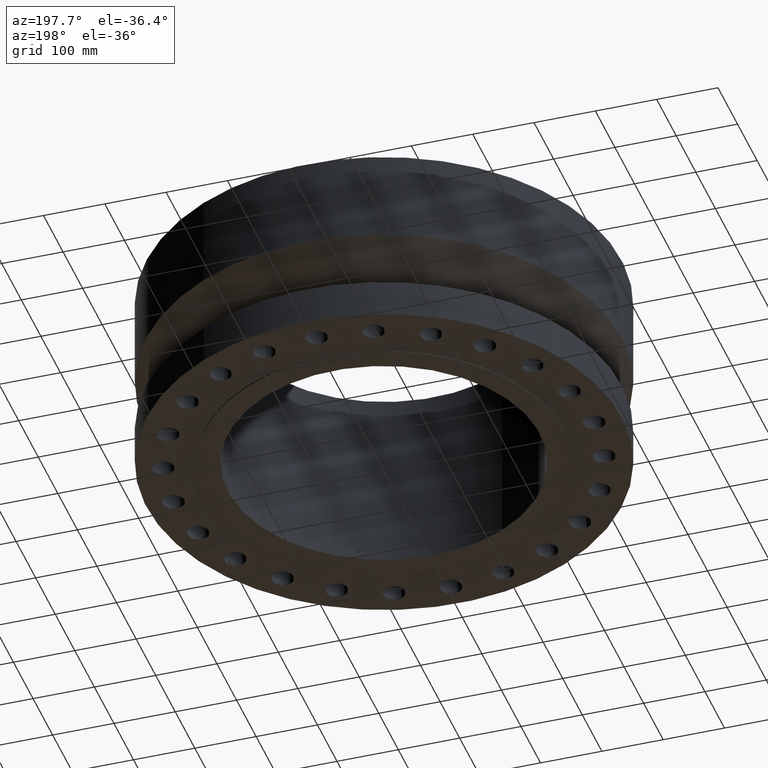
[diagram: clean part render]
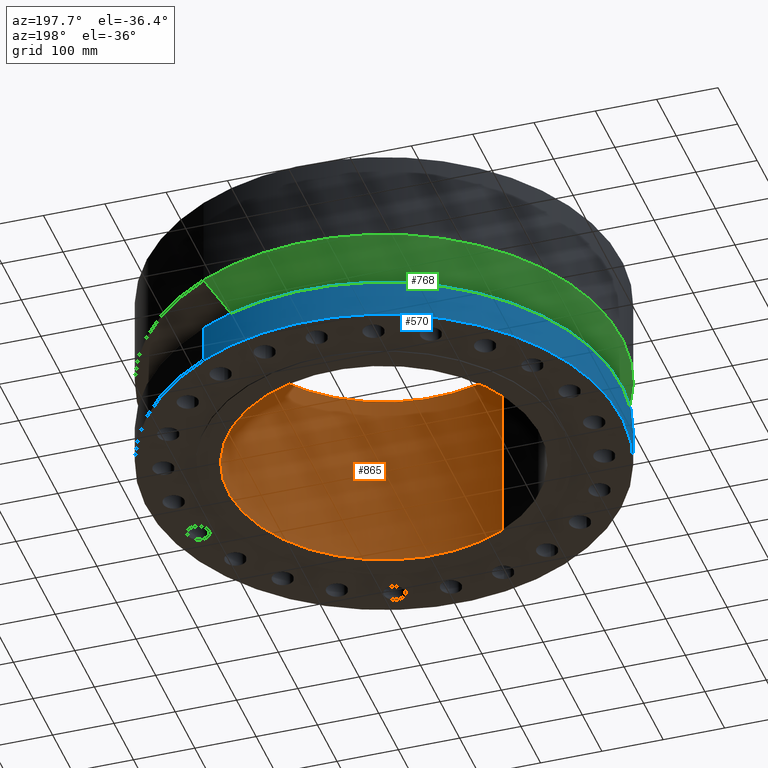
[diagram: same view with three faces highlighted in distinct colors, each labeled with its STEP entity id]
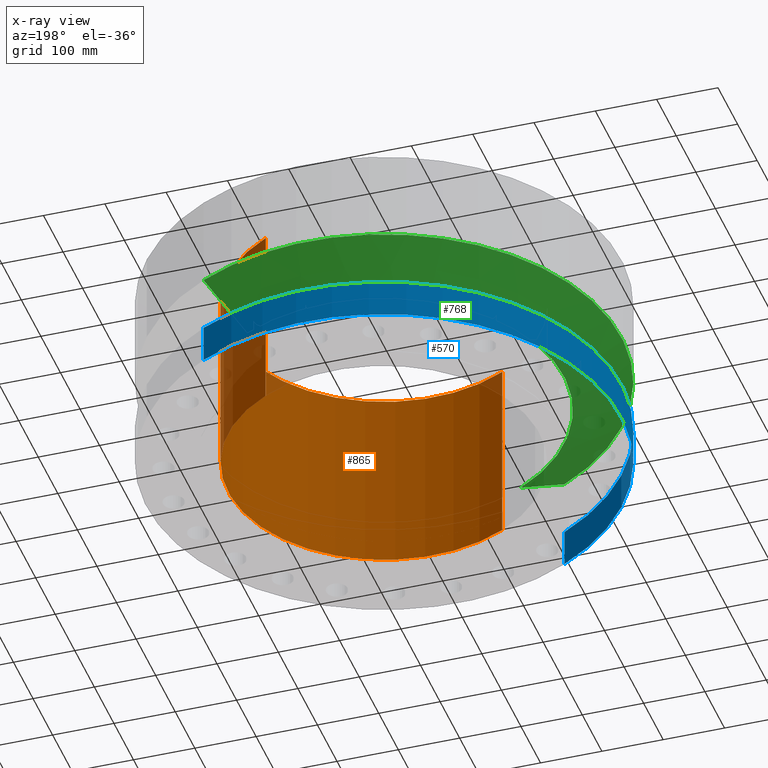
[diagram: x-ray of the same camera — body ghosted, the three highlighted faces saturated]
A machine part, auxiliary view with three faces highlighted in distinct colors.
The next image is the same camera in x-ray (body ghosted, the three faces saturated) — at least one of them is partly hidden behind the body in this view.
Their STEP definitions:

[orange] entity #865 — the highlighted cylindrical surface (partial cylindrical patch) has radius 254 mm, axis along (0, 0, -1).
#827=AXIS2_PLACEMENT_3D('Circle Axis2P3D',#825,#826,$) ;
#838=AXIS2_PLACEMENT_3D('Cylinder Axis2P3D',#835,#836,#837) ;
#849=AXIS2_PLACEMENT_3D('Circle Axis2P3D',#847,#848,$) ;
#820=CARTESIAN_POINT('Vertex',(-4.79425538606,-8.77582561894,11.9375)) ;
#822=CARTESIAN_POINT('Vertex',(4.79425538606,8.77582561894,11.9375)) ;
#825=CARTESIAN_POINT('Axis2P3D Location',(0.,0.,11.9375)) ;
#835=CARTESIAN_POINT('Axis2P3D Location',(0.,0.,5.93750000002)) ;
#840=CARTESIAN_POINT('Line Origine',(4.79425538606,8.77582561894,5.93750000002)) ;
#844=CARTESIAN_POINT('Vertex',(4.79425538606,8.77582561894,-0.0625000000003)) ;
#847=CARTESIAN_POINT('Axis2P3D Location',(0.,0.,-0.0625000000003)) ;
#851=CARTESIAN_POINT('Vertex',(-4.79425538606,-8.77582561894,-0.0625000000003)) ;
#854=CARTESIAN_POINT('Line Origine',(-4.79425538606,-8.77582561894,5.93750000002)) ;
#826=DIRECTION('Axis2P3D Direction',(0.,0.,-0.0393700787402)) ;
#836=DIRECTION('Axis2P3D Direction',(0.,0.,-0.0393700787402)) ;
#837=DIRECTION('Axis2P3D XDirection',(-0.0188750212049,-0.0345504945626,0.)) ;
#841=DIRECTION('Vector Direction',(0.,0.,-0.0393700787402)) ;
#848=DIRECTION('Axis2P3D Direction',(0.,0.,-0.0393700787402)) ;
#855=DIRECTION('Vector Direction',(0.,0.,-0.0393700787402)) ;
#842=VECTOR('Line Direction',#841,0.0393700787402) ;
#856=VECTOR('Line Direction',#855,0.0393700787402) ;
#860=ORIENTED_EDGE('',*,*,#829,.F.) ;
#861=ORIENTED_EDGE('',*,*,#846,.T.) ;
#862=ORIENTED_EDGE('',*,*,#853,.T.) ;
#863=ORIENTED_EDGE('',*,*,#858,.F.) ;
#865=ADVANCED_FACE('PartBody',(#864),#839,.F.) ;
#828=CIRCLE('generated circle',#827,10.) ;
#850=CIRCLE('generated circle',#849,10.) ;
#839=CYLINDRICAL_SURFACE('generated cylinder',#838,10.) ;
#829=EDGE_CURVE('',#823,#821,#828,.T.) ;
#846=EDGE_CURVE('',#823,#845,#843,.T.) ;
#853=EDGE_CURVE('',#845,#852,#850,.T.) ;
#858=EDGE_CURVE('',#821,#852,#857,.T.) ;
#859=EDGE_LOOP('',(#860,#861,#862,#863)) ;
#864=FACE_OUTER_BOUND('',#859,.T.) ;
#843=LINE('Line',#840,#842) ;
#857=LINE('Line',#854,#856) ;
#821=VERTEX_POINT('',#820) ;
#823=VERTEX_POINT('',#822) ;
#845=VERTEX_POINT('',#844) ;
#852=VERTEX_POINT('',#851) ;

[blue] entity #570 — the highlighted cylindrical surface (partial cylindrical patch) has radius 387.35 mm, axis along (0, 0, -1).
#82=AXIS2_PLACEMENT_3D('Circle Axis2P3D',#80,#81,$) ;
#543=AXIS2_PLACEMENT_3D('Cylinder Axis2P3D',#540,#541,#542) ;
#554=AXIS2_PLACEMENT_3D('Circle Axis2P3D',#552,#553,$) ;
#80=CARTESIAN_POINT('Axis2P3D Location',(0.,0.,0.)) ;
#84=CARTESIAN_POINT('Vertex',(-7.31123946374,-13.3831340689,2.23792987641E-015)) ;
#86=CARTESIAN_POINT('Vertex',(7.31123946374,13.3831340689,2.23792987641E-015)) ;
#540=CARTESIAN_POINT('Axis2P3D Location',(0.,0.,5.93750000002)) ;
#545=CARTESIAN_POINT('Line Origine',(-7.31123946374,-13.3831340689,9.00271124669)) ;
#549=CARTESIAN_POINT('Vertex',(-7.31123946374,-13.3831340689,2.43750000001)) ;
#552=CARTESIAN_POINT('Axis2P3D Location',(0.,0.,2.43750000001)) ;
#556=CARTESIAN_POINT('Vertex',(7.31123946374,13.3831340689,2.43750000001)) ;
#559=CARTESIAN_POINT('Line Origine',(7.31123946374,13.3831340689,9.00271124669)) ;
#81=DIRECTION('Axis2P3D Direction',(0.,0.,-0.0393700787402)) ;
#541=DIRECTION('Axis2P3D Direction',(0.,0.,-0.0393700787402)) ;
#542=DIRECTION('Axis2P3D XDirection',(-0.0188750212049,-0.0345504945626,0.)) ;
#546=DIRECTION('Vector Direction',(0.,0.,-0.0393700787402)) ;
#553=DIRECTION('Axis2P3D Direction',(0.,0.,-0.0393700787402)) ;
#560=DIRECTION('Vector Direction',(0.,0.,-0.0393700787402)) ;
#547=VECTOR('Line Direction',#546,0.0393700787402) ;
#561=VECTOR('Line Direction',#560,0.0393700787402) ;
#565=ORIENTED_EDGE('',*,*,#88,.F.) ;
#566=ORIENTED_EDGE('',*,*,#551,.T.) ;
#567=ORIENTED_EDGE('',*,*,#558,.T.) ;
#568=ORIENTED_EDGE('',*,*,#563,.F.) ;
#570=ADVANCED_FACE('PartBody',(#569),#544,.T.) ;
#83=CIRCLE('generated circle',#82,15.2500000001) ;
#555=CIRCLE('generated circle',#554,15.2500000001) ;
#544=CYLINDRICAL_SURFACE('generated cylinder',#543,15.2500000001) ;
#88=EDGE_CURVE('',#85,#87,#83,.T.) ;
#551=EDGE_CURVE('',#85,#550,#548,.F.) ;
#558=EDGE_CURVE('',#550,#557,#555,.T.) ;
#563=EDGE_CURVE('',#87,#557,#562,.F.) ;
#564=EDGE_LOOP('',(#565,#566,#567,#568)) ;
#569=FACE_OUTER_BOUND('',#564,.T.) ;
#548=LINE('Line',#545,#547) ;
#562=LINE('Line',#559,#561) ;
#85=VERTEX_POINT('',#84) ;
#87=VERTEX_POINT('',#86) ;
#550=VERTEX_POINT('',#549) ;
#557=VERTEX_POINT('',#556) ;

[green] entity #768 — the highlighted conical surface has half-angle 60 deg.
#716=AXIS2_PLACEMENT_3D('Circle Axis2P3D',#714,#715,$) ;
#729=AXIS2_PLACEMENT_3D('Cone Axis2P3D',#726,#727,#728) ;
#759=AXIS2_PLACEMENT_3D('Circle Axis2P3D',#757,#758,$) ;
#692=CARTESIAN_POINT('Vertex',(5.54215922629,10.1448544155,3.93750000002)) ;
#699=CARTESIAN_POINT('Vertex',(-5.54215922629,-10.1448544155,3.93750000002)) ;
#714=CARTESIAN_POINT('Axis2P3D Location',(0.,0.,3.93750000002)) ;
#726=CARTESIAN_POINT('Axis2P3D Location',(0.,0.,3.93750000002)) ;
#731=CARTESIAN_POINT('Line Origine',(6.42669934502,11.7639942422,5.00271124667)) ;
#735=CARTESIAN_POINT('Vertex',(7.31123946374,13.3831340689,6.06792249333)) ;
#742=CARTESIAN_POINT('Vertex',(-7.31123946374,-13.3831340689,6.06792249333)) ;
#745=CARTESIAN_POINT('Line Origine',(-6.42669934502,-11.7639942422,5.00271124667)) ;
#757=CARTESIAN_POINT('Axis2P3D Location',(0.,0.,6.06792249333)) ;
#715=DIRECTION('Axis2P3D Direction',(0.,0.,-0.0393700787402)) ;
#727=DIRECTION('Axis2P3D Direction',(-0.,-0.,0.0393700787402)) ;
#728=DIRECTION('Axis2P3D XDirection',(0.0188750212049,0.0345504945626,0.)) ;
#732=DIRECTION('Vector Direction',(0.0163462478604,0.0299216060045,0.0196850393701)) ;
#746=DIRECTION('Vector Direction',(-0.0163462478604,-0.0299216060045,0.0196850393701)) ;
#758=DIRECTION('Axis2P3D Direction',(-0.,0.,0.0393700787402)) ;
#733=VECTOR('Line Direction',#732,0.0393700787402) ;
#747=VECTOR('Line Direction',#746,0.0393700787402) ;
#763=ORIENTED_EDGE('',*,*,#718,.F.) ;
#764=ORIENTED_EDGE('',*,*,#749,.T.) ;
#765=ORIENTED_EDGE('',*,*,#761,.T.) ;
#766=ORIENTED_EDGE('',*,*,#737,.F.) ;
#768=ADVANCED_FACE('PartBody',(#767),#730,.T.) ;
#717=CIRCLE('generated circle',#716,11.56) ;
#760=CIRCLE('generated circle',#759,15.2500000001) ;
#730=CONICAL_SURFACE('Cone',#729,11.56,1.0471975512) ;
#718=EDGE_CURVE('',#700,#693,#717,.T.) ;
#737=EDGE_CURVE('',#693,#736,#734,.T.) ;
#749=EDGE_CURVE('',#700,#743,#748,.T.) ;
#761=EDGE_CURVE('',#743,#736,#760,.F.) ;
#762=EDGE_LOOP('',(#763,#764,#765,#766)) ;
#767=FACE_OUTER_BOUND('',#762,.T.) ;
#734=LINE('Line',#731,#733) ;
#748=LINE('Line',#745,#747) ;
#693=VERTEX_POINT('',#692) ;
#700=VERTEX_POINT('',#699) ;
#736=VERTEX_POINT('',#735) ;
#743=VERTEX_POINT('',#742) ;